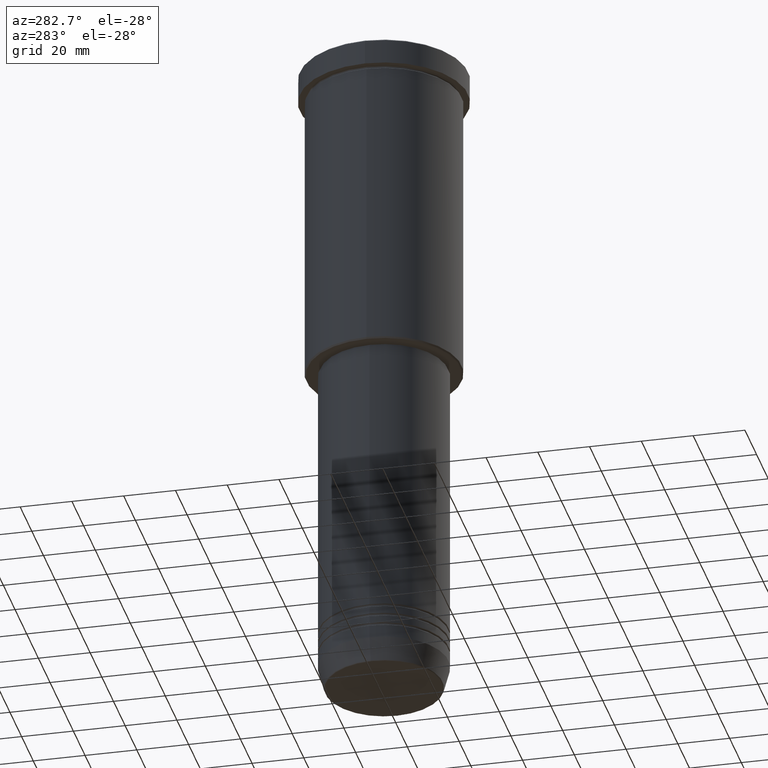
[diagram: clean part render]
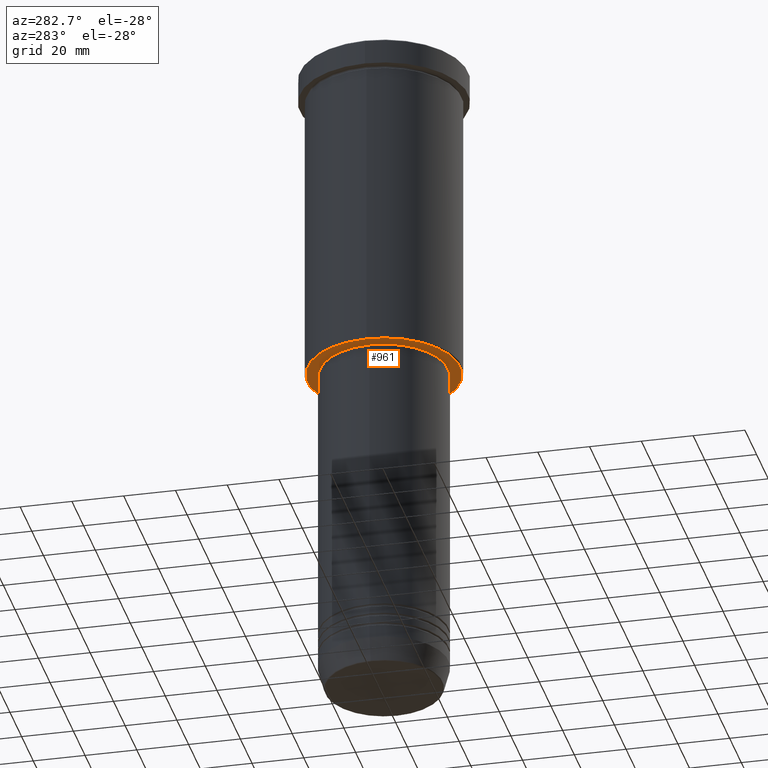
[diagram: same view with one face highlighted and labeled with its STEP entity id]
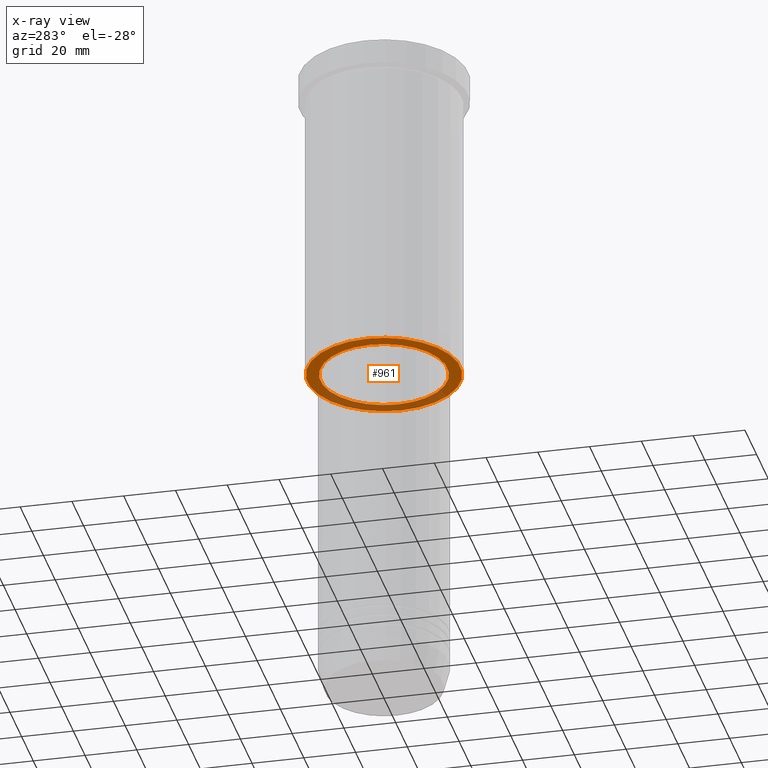
[diagram: x-ray of the same camera — body ghosted, the highlighted face saturated]
A machine part, auxiliary view. The second image highlights one B-rep face of the part: STEP entity #961.
The next image is the same camera in x-ray: the body ghosted, the highlighted face saturated — about 31% of this face is hidden behind the body in this view.
In plain terms, the highlighted planar face has unit normal (0, 0, -1).
Its self-contained STEP definition (entity closure, byte-faithful):
#1 = DIRECTION ( 'NONE',  ( -1.000000000000000000, 0.000000000000000000, 0.000000000000000000 ) ) ;
#16 = PLANE ( 'NONE',  #844 ) ;
#19 = DIRECTION ( 'NONE',  ( 0.000000000000000000, 0.000000000000000000, -1.000000000000000000 ) ) ;
#32 = EDGE_CURVE ( 'NONE', #1078, #581, #51, .T. ) ;
#51 = CIRCLE ( 'NONE', #124, 29.50000000000002132 ) ;
#112 = FACE_BOUND ( 'NONE', #1021, .T. ) ;
#121 = EDGE_CURVE ( 'NONE', #581, #1078, #546, .T. ) ;
#124 = AXIS2_PLACEMENT_3D ( 'NONE', #558, #19, #1 ) ;
#163 = AXIS2_PLACEMENT_3D ( 'NONE', #732, #241, #612 ) ;
#176 = DIRECTION ( 'NONE',  ( -0.000000000000000000, -0.000000000000000000, 1.000000000000000000 ) ) ;
#215 = AXIS2_PLACEMENT_3D ( 'NONE', #838, #176, #1009 ) ;
#241 = DIRECTION ( 'NONE',  ( -0.000000000000000000, -0.000000000000000000, 1.000000000000000000 ) ) ;
#256 = CARTESIAN_POINT ( 'NONE',  ( -24.50000000000000000, 3.000384657911015469E-15, -126.0000000000000000 ) ) ;
#286 = CARTESIAN_POINT ( 'NONE',  ( 0.000000000000000000, 0.000000000000000000, -126.0000000000000000 ) ) ;
#311 = EDGE_CURVE ( 'NONE', #1124, #796, #607, .T. ) ;
#383 = DIRECTION ( 'NONE',  ( 0.000000000000000000, 0.000000000000000000, -1.000000000000000000 ) ) ;
#399 = FACE_OUTER_BOUND ( 'NONE', #724, .T. ) ;
#480 = DIRECTION ( 'NONE',  ( -1.000000000000000000, 0.000000000000000000, -0.000000000000000000 ) ) ;
#496 = CIRCLE ( 'NONE', #215, 24.50000000000000000 ) ;
#512 = EDGE_CURVE ( 'NONE', #796, #1124, #496, .T. ) ;
#546 = CIRCLE ( 'NONE', #982, 29.50000000000002132 ) ;
#558 = CARTESIAN_POINT ( 'NONE',  ( 0.000000000000000000, 0.000000000000000000, -126.0000000000000000 ) ) ;
#581 = VERTEX_POINT ( 'NONE', #743 ) ;
#607 = CIRCLE ( 'NONE', #163, 24.50000000000000000 ) ;
#612 = DIRECTION ( 'NONE',  ( 1.000000000000000000, 0.000000000000000000, 0.000000000000000000 ) ) ;
#661 = DIRECTION ( 'NONE',  ( -1.000000000000000000, 0.000000000000000000, 0.000000000000000000 ) ) ;
#674 = DIRECTION ( 'NONE',  ( 0.000000000000000000, 0.000000000000000000, -1.000000000000000000 ) ) ;
#724 = EDGE_LOOP ( 'NONE', ( #1181, #1010 ) ) ;
#732 = CARTESIAN_POINT ( 'NONE',  ( 0.000000000000000000, 0.000000000000000000, -126.0000000000000000 ) ) ;
#743 = CARTESIAN_POINT ( 'NONE',  ( 29.50000000000002132, 0.000000000000000000, -126.0000000000000000 ) ) ;
#773 = CARTESIAN_POINT ( 'NONE',  ( 0.000000000000000000, 30.00000000000000000, -126.0000000000000000 ) ) ;
#776 = ORIENTED_EDGE ( 'NONE', *, *, #512, .T. ) ;
#796 = VERTEX_POINT ( 'NONE', #256 ) ;
#838 = CARTESIAN_POINT ( 'NONE',  ( 0.000000000000000000, 0.000000000000000000, -126.0000000000000000 ) ) ;
#844 = AXIS2_PLACEMENT_3D ( 'NONE', #773, #383, #480 ) ;
#860 = ORIENTED_EDGE ( 'NONE', *, *, #311, .T. ) ;
#961 = ADVANCED_FACE ( 'NONE', ( #399, #112 ), #16, .T. ) ;
#982 = AXIS2_PLACEMENT_3D ( 'NONE', #286, #674, #661 ) ;
#1009 = DIRECTION ( 'NONE',  ( 1.000000000000000000, 0.000000000000000000, 0.000000000000000000 ) ) ;
#1010 = ORIENTED_EDGE ( 'NONE', *, *, #32, .T. ) ;
#1021 = EDGE_LOOP ( 'NONE', ( #860, #776 ) ) ;
#1054 = CARTESIAN_POINT ( 'NONE',  ( -29.50000000000002132, 3.643324227463376968E-15, -126.0000000000000000 ) ) ;
#1078 = VERTEX_POINT ( 'NONE', #1054 ) ;
#1124 = VERTEX_POINT ( 'NONE', #1138 ) ;
#1138 = CARTESIAN_POINT ( 'NONE',  ( 24.50000000000000000, 0.000000000000000000, -126.0000000000000000 ) ) ;
#1181 = ORIENTED_EDGE ( 'NONE', *, *, #121, .T. ) ;